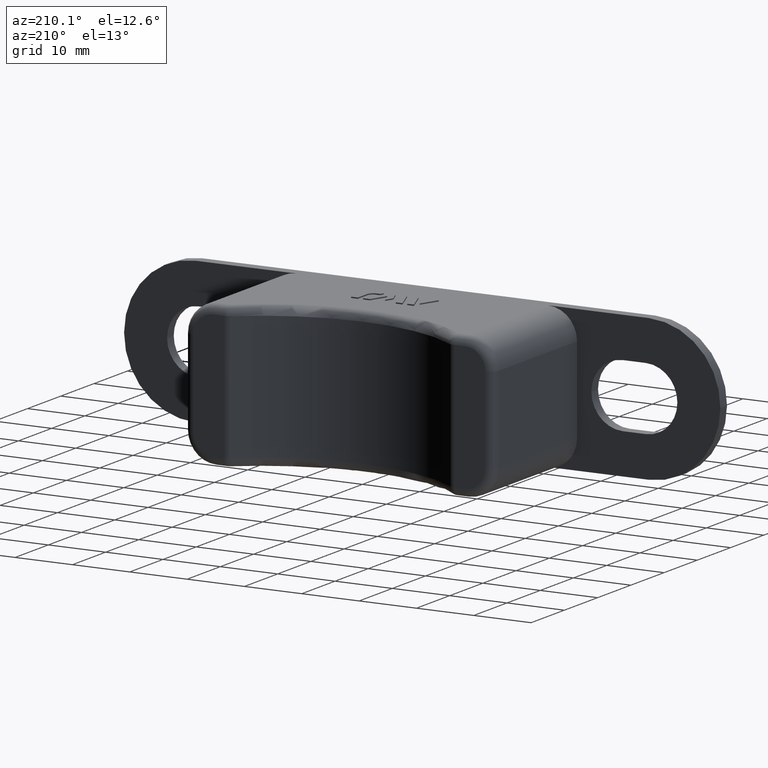
[diagram: clean part render]
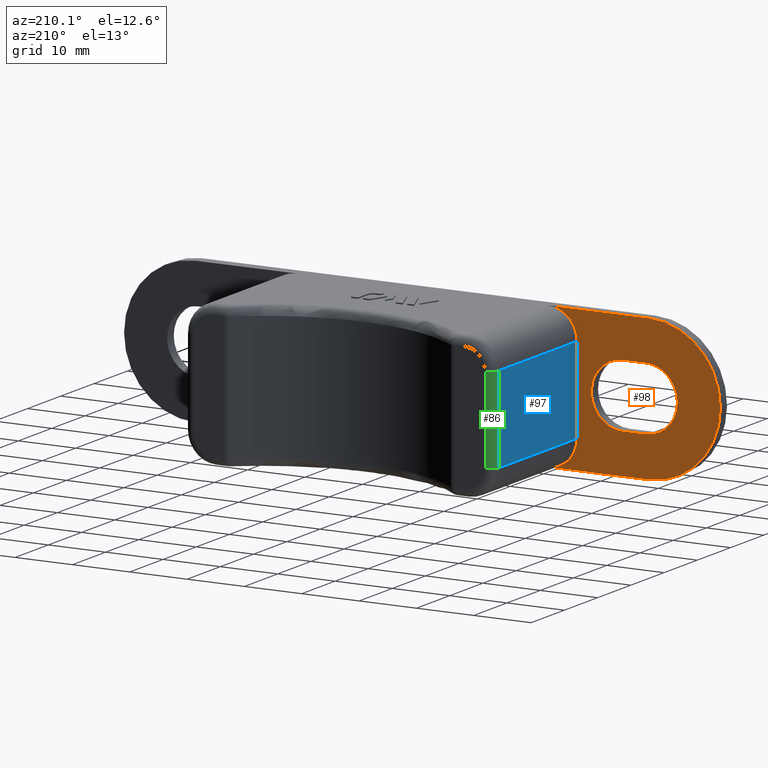
[diagram: same view with three faces highlighted in distinct colors, each labeled with its STEP entity id]
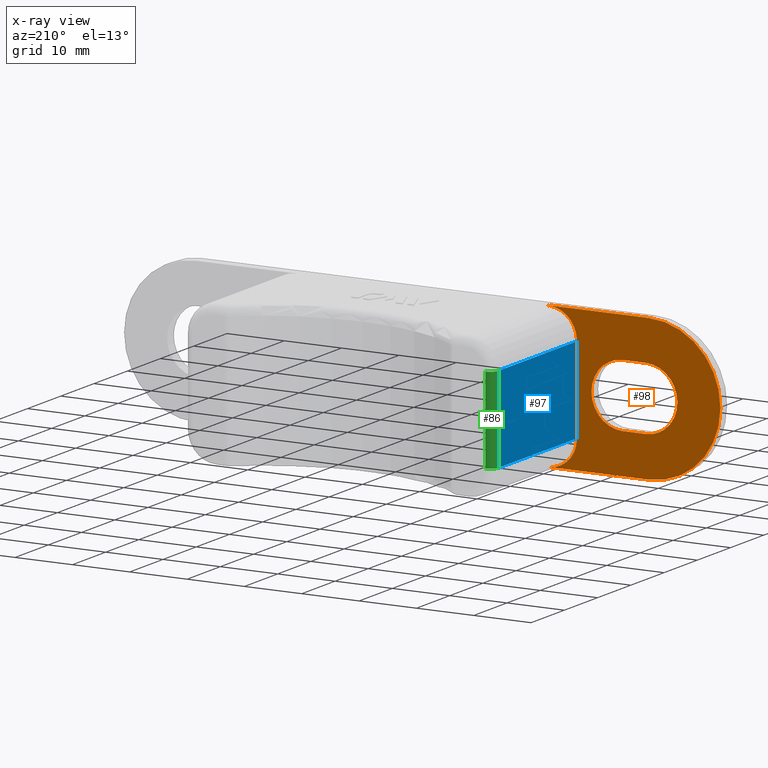
[diagram: x-ray of the same camera — body ghosted, the three highlighted faces saturated]
A machine part, auxiliary view with three faces highlighted in distinct colors.
The next image is the same camera in x-ray (body ghosted, the three faces saturated) — at least one of them is partly hidden behind the body in this view.
Their STEP definitions:

[orange] entity #98 — the highlighted planar face has unit normal (0, 1, 0).
#98 = ADVANCED_FACE( '', ( #514, #515 ), #516, .T. );
#514 = FACE_OUTER_BOUND( '', #1254, .T. );
#515 = FACE_BOUND( '', #1255, .T. );
#516 = PLANE( '', #1256 );
#1254 = EDGE_LOOP( '', ( #2338, #2339, #2340, #2341, #2342, #2343, #2344 ) );
#1255 = EDGE_LOOP( '', ( #2345, #2346, #2347, #2348, #2349, #2350 ) );
#1256 = AXIS2_PLACEMENT_3D( '', #2351, #2352, #2353 );
#2338 = ORIENTED_EDGE( '', *, *, #5021, .T. );
#2339 = ORIENTED_EDGE( '', *, *, #5033, .T. );
#2340 = ORIENTED_EDGE( '', *, *, #4714, .F. );
#2341 = ORIENTED_EDGE( '', *, *, #5034, .T. );
#2342 = ORIENTED_EDGE( '', *, *, #5032, .F. );
#2343 = ORIENTED_EDGE( '', *, *, #5035, .T. );
#2344 = ORIENTED_EDGE( '', *, *, #5029, .T. );
#2345 = ORIENTED_EDGE( '', *, *, #5036, .T. );
#2346 = ORIENTED_EDGE( '', *, *, #5037, .T. );
#2347 = ORIENTED_EDGE( '', *, *, #5038, .T. );
#2348 = ORIENTED_EDGE( '', *, *, #5039, .T. );
#2349 = ORIENTED_EDGE( '', *, *, #5040, .T. );
#2350 = ORIENTED_EDGE( '', *, *, #5041, .T. );
#2351 = CARTESIAN_POINT( '', ( -27.0000000000000, 2.00000000000000, -12.5000000000000 ) );
#2352 = DIRECTION( '', ( 0.000000000000000, 1.00000000000000, 0.000000000000000 ) );
#2353 = DIRECTION( '', ( 1.00000000000000, 0.000000000000000, 0.000000000000000 ) );
#4714 = EDGE_CURVE( '', #5607, #5609, #5610, .T. );
#5021 = EDGE_CURVE( '', #6208, #6206, #6209, .T. );
#5029 = EDGE_CURVE( '', #6211, #6208, #6222, .T. );
#5032 = EDGE_CURVE( '', #6225, #6223, #6227, .T. );
#5033 = EDGE_CURVE( '', #6206, #5609, #6228, .T. );
#5034 = EDGE_CURVE( '', #5607, #6223, #6229, .F. );
#5035 = EDGE_CURVE( '', #6225, #6211, #6230, .F. );
#5036 = EDGE_CURVE( '', #6231, #6232, #6233, .T. );
#5037 = EDGE_CURVE( '', #6232, #6234, #6235, .T. );
#5038 = EDGE_CURVE( '', #6234, #6236, #6237, .T. );
#5039 = EDGE_CURVE( '', #6236, #6238, #6239, .T. );
#5040 = EDGE_CURVE( '', #6238, #6240, #6241, .T. );
#5041 = EDGE_CURVE( '', #6240, #6231, #6242, .T. );
#5607 = VERTEX_POINT( '', #7079 );
#5609 = VERTEX_POINT( '', #7082 );
#5610 = LINE( '', #7083, #7084 );
#6206 = VERTEX_POINT( '', #7958 );
#6208 = VERTEX_POINT( '', #7961 );
#6209 = CIRCLE( '', #7962, 12.5000000000000 );
#6211 = VERTEX_POINT( '', #7965 );
#6222 = LINE( '', #7981, #7982 );
#6223 = VERTEX_POINT( '', #7983 );
#6225 = VERTEX_POINT( '', #7986 );
#6227 = LINE( '', #7989, #7990 );
#6228 = CIRCLE( '', #7991, 12.5000000000000 );
#6229 = CIRCLE( '', #7992, 5.00000000000000 );
#6230 = CIRCLE( '', #7993, 5.00000000000000 );
#6231 = VERTEX_POINT( '', #7994 );
#6232 = VERTEX_POINT( '', #7995 );
#6233 = CIRCLE( '', #7996, 5.50000000000000 );
#6234 = VERTEX_POINT( '', #7997 );
#6235 = CIRCLE( '', #7998, 5.50000000000000 );
#6236 = VERTEX_POINT( '', #7999 );
#6237 = LINE( '', #8000, #8001 );
#6238 = VERTEX_POINT( '', #8002 );
#6239 = CIRCLE( '', #8003, 5.50000000000000 );
#6240 = VERTEX_POINT( '', #8004 );
#6241 = CIRCLE( '', #8005, 5.50000000000000 );
#6242 = LINE( '', #8006, #8007 );
#7079 = CARTESIAN_POINT( '', ( -22.0000000000000, 2.00000000000000, 12.5000000000000 ) );
#7082 = CARTESIAN_POINT( '', ( -39.5000000000000, 2.00000000000000, 12.5000000000000 ) );
#7083 = CARTESIAN_POINT( '', ( -27.0000000000000, 2.00000000000000, 12.5000000000000 ) );
#7084 = VECTOR( '', #9214, 1000.00000000000 );
#7958 = CARTESIAN_POINT( '', ( -52.0000000000000, 2.00000000000000, -3.46944695195361E-015 ) );
#7961 = CARTESIAN_POINT( '', ( -39.5000000000000, 2.00000000000000, -12.5000000000000 ) );
#7962 = AXIS2_PLACEMENT_3D( '', #9575, #9576, #9577 );
#7965 = CARTESIAN_POINT( '', ( -22.0000000000000, 2.00000000000000, -12.5000000000000 ) );
#7981 = CARTESIAN_POINT( '', ( -27.0000000000000, 2.00000000000000, -12.5000000000000 ) );
#7982 = VECTOR( '', #9587, 1000.00000000000 );
#7983 = CARTESIAN_POINT( '', ( -27.0000000000000, 2.00000000000000, 7.50000000000000 ) );
#7986 = CARTESIAN_POINT( '', ( -27.0000000000000, 2.00000000000000, -7.50000000000000 ) );
#7989 = CARTESIAN_POINT( '', ( -27.0000000000000, 2.00000000000000, -12.5000000000000 ) );
#7990 = VECTOR( '', #9590, 1000.00000000000 );
#7991 = AXIS2_PLACEMENT_3D( '', #9591, #9592, #9593 );
#7992 = AXIS2_PLACEMENT_3D( '', #9594, #9595, #9596 );
#7993 = AXIS2_PLACEMENT_3D( '', #9597, #9598, #9599 );
#7994 = CARTESIAN_POINT( '', ( -39.0000000000000, 2.00000199988632, 5.50000000000000 ) );
#7995 = CARTESIAN_POINT( '', ( -44.5000000000000, 2.00000199988632, 3.46944695195361E-015 ) );
#7996 = AXIS2_PLACEMENT_3D( '', #9600, #9601, #9602 );
#7997 = CARTESIAN_POINT( '', ( -39.0000000000000, 2.00000199988632, -5.50000000000000 ) );
#7998 = AXIS2_PLACEMENT_3D( '', #9603, #9604, #9605 );
#7999 = CARTESIAN_POINT( '', ( -35.0000000000000, 2.00000199988632, -5.50000000000000 ) );
#8000 = CARTESIAN_POINT( '', ( -39.0000000000000, 2.00000199988632, -5.50000000000000 ) );
#8001 = VECTOR( '', #9606, 1000.00000000000 );
#8002 = CARTESIAN_POINT( '', ( -29.5000000000000, 2.00000199988632, 8.67361737988404E-016 ) );
#8003 = AXIS2_PLACEMENT_3D( '', #9607, #9608, #9609 );
#8004 = CARTESIAN_POINT( '', ( -35.0000000000000, 2.00000199988632, 5.50000000000000 ) );
#8005 = AXIS2_PLACEMENT_3D( '', #9610, #9611, #9612 );
#8006 = CARTESIAN_POINT( '', ( -35.0000000000000, 2.00000199988632, 5.50000000000000 ) );
#8007 = VECTOR( '', #9613, 1000.00000000000 );
#9214 = DIRECTION( '', ( -1.00000000000000, 0.000000000000000, 0.000000000000000 ) );
#9575 = CARTESIAN_POINT( '', ( -39.5000000000000, 2.00000000000000, -3.46944695195361E-015 ) );
#9576 = DIRECTION( '', ( 0.000000000000000, 1.00000000000000, 0.000000000000000 ) );
#9577 = DIRECTION( '', ( 0.000000000000000, 0.000000000000000, 1.00000000000000 ) );
#9587 = DIRECTION( '', ( -1.00000000000000, 0.000000000000000, 0.000000000000000 ) );
#9590 = DIRECTION( '', ( 0.000000000000000, 0.000000000000000, 1.00000000000000 ) );
#9591 = CARTESIAN_POINT( '', ( -39.5000000000000, 2.00000000000000, 3.46944695195361E-015 ) );
#9592 = DIRECTION( '', ( 0.000000000000000, 1.00000000000000, 0.000000000000000 ) );
#9593 = DIRECTION( '', ( 0.000000000000000, 0.000000000000000, 1.00000000000000 ) );
#9594 = CARTESIAN_POINT( '', ( -22.0000000000000, 2.00000000000000, 7.50000000000000 ) );
#9595 = DIRECTION( '', ( 0.000000000000000, 1.00000000000000, 0.000000000000000 ) );
#9596 = DIRECTION( '', ( 0.000000000000000, 0.000000000000000, 1.00000000000000 ) );
#9597 = CARTESIAN_POINT( '', ( -22.0000000000000, 2.00000000000000, -7.50000000000000 ) );
#9598 = DIRECTION( '', ( 0.000000000000000, 1.00000000000000, 0.000000000000000 ) );
#9599 = DIRECTION( '', ( 0.000000000000000, 0.000000000000000, 1.00000000000000 ) );
#9600 = CARTESIAN_POINT( '', ( -39.0000000000000, 2.00000199988632, 3.46944695195361E-015 ) );
#9601 = DIRECTION( '', ( 0.000000000000000, -1.00000000000000, 0.000000000000000 ) );
#9602 = DIRECTION( '', ( 5.78241158658936E-017, 0.000000000000000, 1.00000000000000 ) );
#9603 = CARTESIAN_POINT( '', ( -39.0000000000000, 2.00000199988632, 1.73472347597681E-015 ) );
#9604 = DIRECTION( '', ( 0.000000000000000, -1.00000000000000, 0.000000000000000 ) );
#9605 = DIRECTION( '', ( -1.00000000000000, 0.000000000000000, 5.78241158658936E-017 ) );
#9606 = DIRECTION( '', ( 1.00000000000000, 0.000000000000000, -5.78241158658936E-017 ) );
#9607 = CARTESIAN_POINT( '', ( -35.0000000000000, 2.00000199988632, 1.73472347597681E-015 ) );
#9608 = DIRECTION( '', ( 0.000000000000000, -1.00000000000000, 0.000000000000000 ) );
#9609 = DIRECTION( '', ( -5.78241158658936E-017, 0.000000000000000, -1.00000000000000 ) );
#9610 = CARTESIAN_POINT( '', ( -35.0000000000000, 2.00000199988632, 3.46944695195361E-015 ) );
#9611 = DIRECTION( '', ( 0.000000000000000, -1.00000000000000, 0.000000000000000 ) );
#9612 = DIRECTION( '', ( 1.00000000000000, 0.000000000000000, -5.78241158658936E-017 ) );
#9613 = DIRECTION( '', ( -1.00000000000000, 0.000000000000000, 5.78241158658936E-017 ) );

[blue] entity #97 — the highlighted planar face has unit normal (-1, 0, 0).
#97 = ADVANCED_FACE( '', ( #512 ), #513, .T. );
#512 = FACE_OUTER_BOUND( '', #1252, .T. );
#513 = PLANE( '', #1253 );
#1252 = EDGE_LOOP( '', ( #2331, #2332, #2333, #2334 ) );
#1253 = AXIS2_PLACEMENT_3D( '', #2335, #2336, #2337 );
#2331 = ORIENTED_EDGE( '', *, *, #5030, .T. );
#2332 = ORIENTED_EDGE( '', *, *, #4990, .T. );
#2333 = ORIENTED_EDGE( '', *, *, #5031, .T. );
#2334 = ORIENTED_EDGE( '', *, *, #5032, .T. );
#2335 = CARTESIAN_POINT( '', ( -27.0000000000000, 27.0000000000000, -12.5000000000000 ) );
#2336 = DIRECTION( '', ( -1.00000000000000, 6.93889390390723E-017, 0.000000000000000 ) );
#2337 = DIRECTION( '', ( 6.93889390390723E-017, 1.00000000000000, 0.000000000000000 ) );
#4990 = EDGE_CURVE( '', #6145, #6150, #6152, .F. );
#5030 = EDGE_CURVE( '', #6223, #6145, #6224, .F. );
#5031 = EDGE_CURVE( '', #6150, #6225, #6226, .T. );
#5032 = EDGE_CURVE( '', #6225, #6223, #6227, .T. );
#6145 = VERTEX_POINT( '', #7875 );
#6150 = VERTEX_POINT( '', #7881 );
#6152 = LINE( '', #7883, #7884 );
#6223 = VERTEX_POINT( '', #7983 );
#6224 = LINE( '', #7984, #7985 );
#6225 = VERTEX_POINT( '', #7986 );
#6226 = LINE( '', #7987, #7988 );
#6227 = LINE( '', #7989, #7990 );
#7875 = CARTESIAN_POINT( '', ( -27.0000000000000, 25.5000000000000, 7.50000000000000 ) );
#7881 = CARTESIAN_POINT( '', ( -27.0000000000000, 25.5000000000000, -7.50000000000000 ) );
#7883 = CARTESIAN_POINT( '', ( -27.0000000000000, 25.5000000000000, -12.5000000000000 ) );
#7884 = VECTOR( '', #9526, 1000.00000000000 );
#7983 = CARTESIAN_POINT( '', ( -27.0000000000000, 2.00000000000000, 7.50000000000000 ) );
#7984 = CARTESIAN_POINT( '', ( -27.0000000000000, 27.0000000000000, 7.50000000000000 ) );
#7985 = VECTOR( '', #9588, 1000.00000000000 );
#7986 = CARTESIAN_POINT( '', ( -27.0000000000000, 2.00000000000000, -7.50000000000000 ) );
#7987 = CARTESIAN_POINT( '', ( -27.0000000000000, 27.0000000000000, -7.50000000000000 ) );
#7988 = VECTOR( '', #9589, 1000.00000000000 );
#7989 = CARTESIAN_POINT( '', ( -27.0000000000000, 2.00000000000000, -12.5000000000000 ) );
#7990 = VECTOR( '', #9590, 1000.00000000000 );
#9526 = DIRECTION( '', ( 0.000000000000000, 0.000000000000000, 1.00000000000000 ) );
#9588 = DIRECTION( '', ( -6.93889390390723E-017, -1.00000000000000, 0.000000000000000 ) );
#9589 = DIRECTION( '', ( -6.93889390390723E-017, -1.00000000000000, 0.000000000000000 ) );
#9590 = DIRECTION( '', ( 0.000000000000000, 0.000000000000000, 1.00000000000000 ) );

[green] entity #86 — the highlighted cylindrical surface (edge-blend (fillet) strip) has radius 1.5 mm, axis along (0, 0, -1).
#86 = ADVANCED_FACE( '', ( #490 ), #491, .T. );
#490 = FACE_OUTER_BOUND( '', #1230, .T. );
#491 = CYLINDRICAL_SURFACE( '', #1231, 1.50000000000000 );
#1230 = EDGE_LOOP( '', ( #2247, #2248, #2249, #2250 ) );
#1231 = AXIS2_PLACEMENT_3D( '', #2251, #2252, #2253 );
#2247 = ORIENTED_EDGE( '', *, *, #4987, .T. );
#2248 = ORIENTED_EDGE( '', *, *, #4988, .F. );
#2249 = ORIENTED_EDGE( '', *, *, #4989, .F. );
#2250 = ORIENTED_EDGE( '', *, *, #4990, .F. );
#2251 = CARTESIAN_POINT( '', ( -25.5000000000000, 25.5000000000000, -12.5000000000000 ) );
#2252 = DIRECTION( '', ( 0.000000000000000, 0.000000000000000, -1.00000000000000 ) );
#2253 = DIRECTION( '', ( 1.00000000000000, 0.000000000000000, 0.000000000000000 ) );
#4987 = EDGE_CURVE( '', #6145, #6146, #6147, .T. );
#4988 = EDGE_CURVE( '', #6148, #6146, #6149, .T. );
#4989 = EDGE_CURVE( '', #6150, #6148, #6151, .T. );
#4990 = EDGE_CURVE( '', #6145, #6150, #6152, .F. );
#6145 = VERTEX_POINT( '', #7875 );
#6146 = VERTEX_POINT( '', #7876 );
#6147 = CIRCLE( '', #7877, 1.50000000000000 );
#6148 = VERTEX_POINT( '', #7878 );
#6149 = LINE( '', #7879, #7880 );
#6150 = VERTEX_POINT( '', #7881 );
#6151 = CIRCLE( '', #7882, 1.50000000000000 );
#6152 = LINE( '', #7883, #7884 );
#7875 = CARTESIAN_POINT( '', ( -27.0000000000000, 25.5000000000000, 7.50000000000000 ) );
#7876 = CARTESIAN_POINT( '', ( -25.5000000000000, 27.0000000000000, 7.50000000000000 ) );
#7877 = AXIS2_PLACEMENT_3D( '', #9519, #9520, #9521 );
#7878 = CARTESIAN_POINT( '', ( -25.5000000000000, 27.0000000000000, -7.50000000000000 ) );
#7879 = CARTESIAN_POINT( '', ( -25.5000000000000, 27.0000000000000, -12.5000000000000 ) );
#7880 = VECTOR( '', #9522, 1000.00000000000 );
#7881 = CARTESIAN_POINT( '', ( -27.0000000000000, 25.5000000000000, -7.50000000000000 ) );
#7882 = AXIS2_PLACEMENT_3D( '', #9523, #9524, #9525 );
#7883 = CARTESIAN_POINT( '', ( -27.0000000000000, 25.5000000000000, -12.5000000000000 ) );
#7884 = VECTOR( '', #9526, 1000.00000000000 );
#9519 = CARTESIAN_POINT( '', ( -25.5000000000000, 25.5000000000000, 7.50000000000000 ) );
#9520 = DIRECTION( '', ( 0.000000000000000, 0.000000000000000, -1.00000000000000 ) );
#9521 = DIRECTION( '', ( -1.00000000000000, 0.000000000000000, 0.000000000000000 ) );
#9522 = DIRECTION( '', ( 0.000000000000000, 0.000000000000000, 1.00000000000000 ) );
#9523 = CARTESIAN_POINT( '', ( -25.5000000000000, 25.5000000000000, -7.50000000000000 ) );
#9524 = DIRECTION( '', ( 0.000000000000000, 0.000000000000000, -1.00000000000000 ) );
#9525 = DIRECTION( '', ( -1.00000000000000, 0.000000000000000, 0.000000000000000 ) );
#9526 = DIRECTION( '', ( 0.000000000000000, 0.000000000000000, 1.00000000000000 ) );